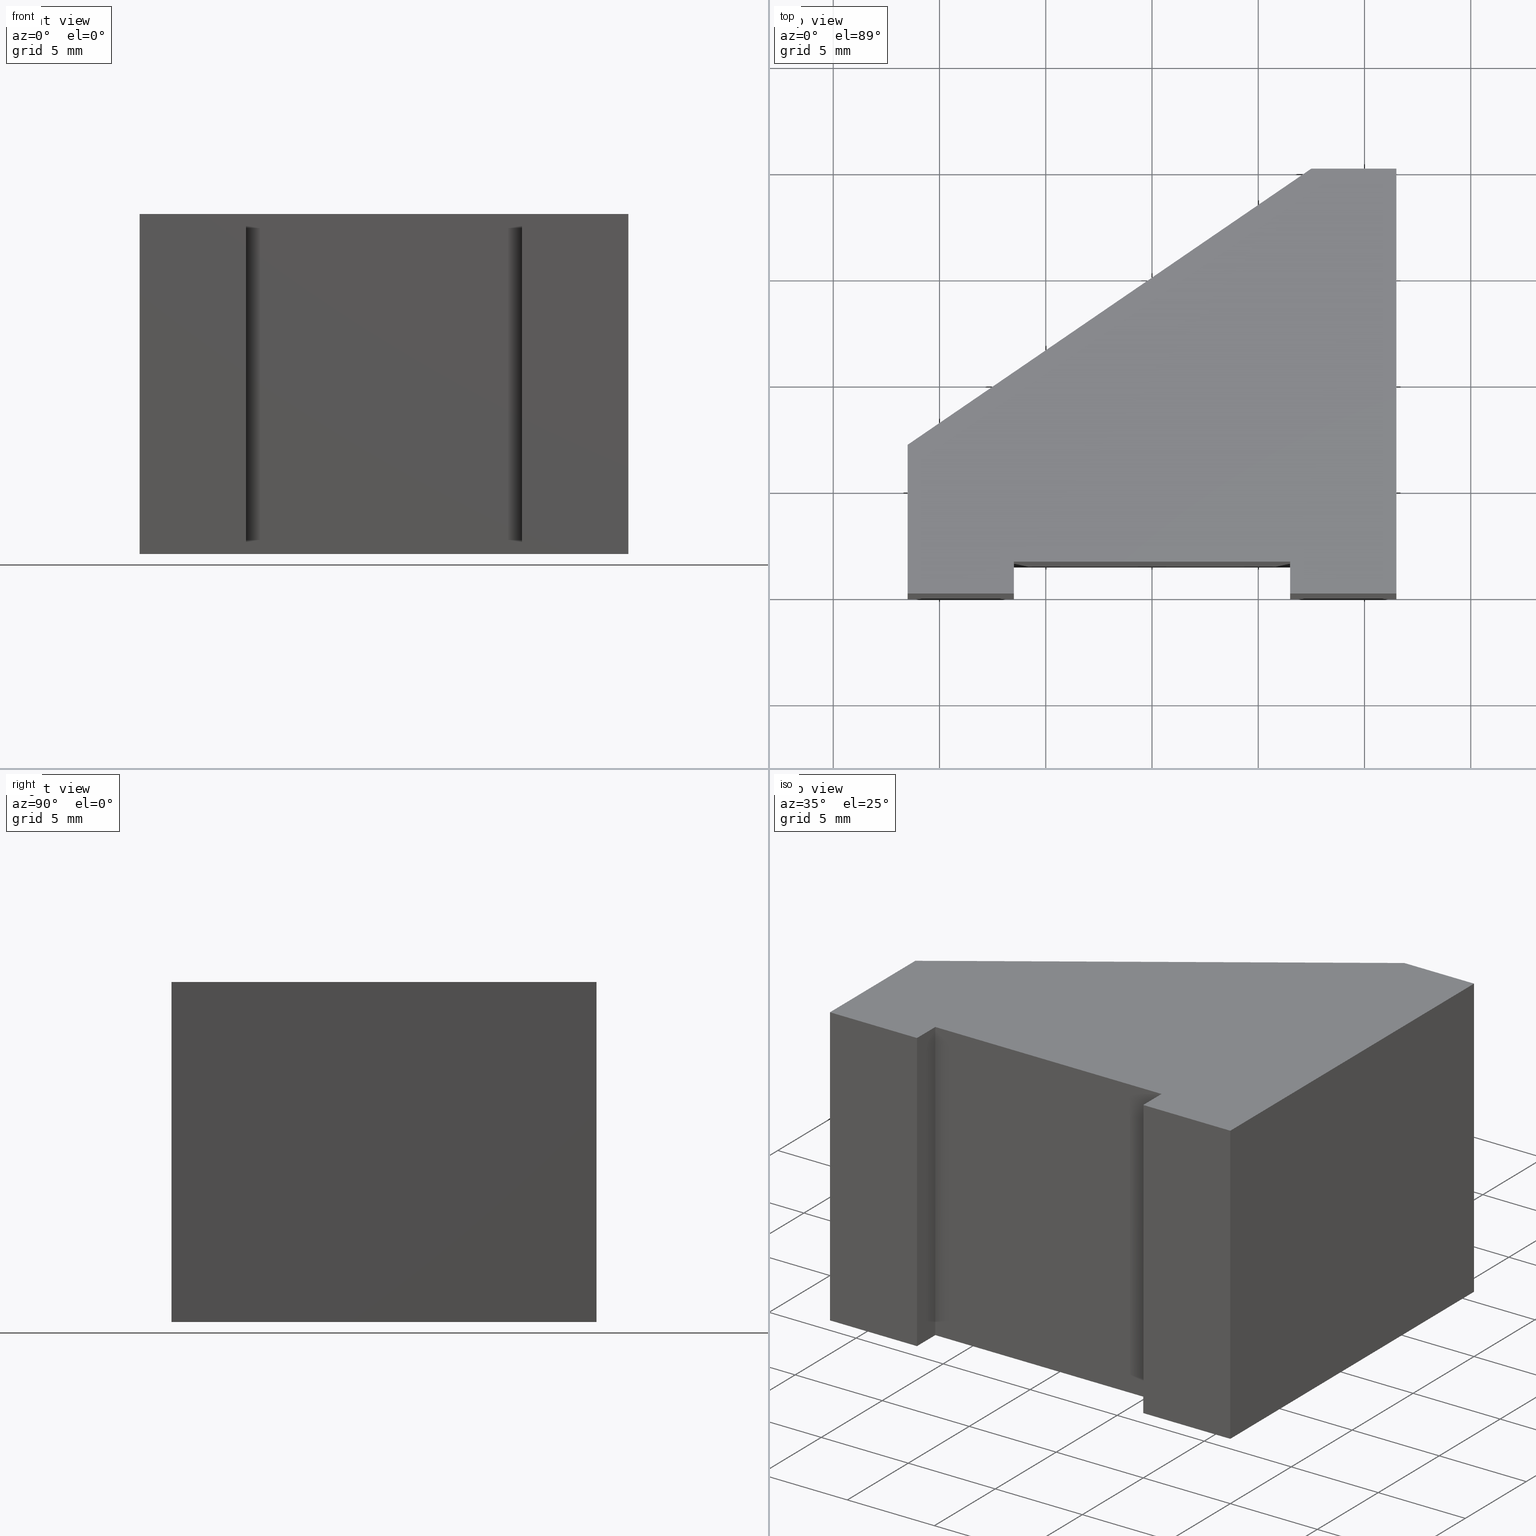
[diagram: canonical four-view strip — front | top / right | iso, engineering-drawing reading convention]
A machine part, canonical four-view strip (front | top / right | iso — engineering-drawing reading convention). The complete STEP part file that produces these views, byte-faithful:
ISO-10303-21;
HEADER;
/* Generated by software containing ST-Developer
 * from STEP Tools, Inc. (www.steptools.com) 
 */

FILE_DESCRIPTION(
/* description */ (''),
/* implementation_level */ '2;1');

FILE_NAME(
/* name */ 'E_3_01_06_06_00_WKZ-0145.stp',
/* time_stamp */ '2025-11-24T11:56:24+01:00',
/* author */ ('d.fischer'),
/* organization */ (''),
/* preprocessor_version */ 'ST-DEVELOPER v20',
/* originating_system */ 'Autodesk Inventor 2025',
/* authorisation */ '');

FILE_SCHEMA (('AUTOMOTIVE_DESIGN { 1 0 10303 214 3 1 1 }'));
ENDSEC;

DATA;
#10=MECHANICAL_DESIGN_GEOMETRIC_PRESENTATION_REPRESENTATION('',(#14,#15,
#16),#359);
#11=SHAPE_REPRESENTATION_RELATIONSHIP('SRR','None',#366,#12);
#12=ADVANCED_BREP_SHAPE_REPRESENTATION('',(#13),#358);
#13=MANIFOLD_SOLID_BREP('Volumenk\X\F6rper1',#214);
#14=STYLED_ITEM('',(#375),#207);
#15=STYLED_ITEM('',(#376),#212);
#16=STYLED_ITEM('',(#375),#13);
#17=FACE_OUTER_BOUND('',#28,.T.);
#18=FACE_OUTER_BOUND('',#29,.T.);
#19=FACE_OUTER_BOUND('',#30,.T.);
#20=FACE_OUTER_BOUND('',#31,.T.);
#21=FACE_OUTER_BOUND('',#32,.T.);
#22=FACE_OUTER_BOUND('',#33,.T.);
#23=FACE_OUTER_BOUND('',#34,.T.);
#24=FACE_OUTER_BOUND('',#35,.T.);
#25=FACE_OUTER_BOUND('',#36,.T.);
#26=FACE_OUTER_BOUND('',#37,.T.);
#27=FACE_OUTER_BOUND('',#38,.T.);
#28=EDGE_LOOP('',(#138,#139,#140,#141,#142,#143,#144,#145,#146));
#29=EDGE_LOOP('',(#147,#148,#149,#150));
#30=EDGE_LOOP('',(#151,#152,#153,#154));
#31=EDGE_LOOP('',(#155,#156,#157,#158));
#32=EDGE_LOOP('',(#159,#160,#161,#162));
#33=EDGE_LOOP('',(#163,#164,#165,#166));
#34=EDGE_LOOP('',(#167,#168,#169,#170));
#35=EDGE_LOOP('',(#171,#172,#173,#174));
#36=EDGE_LOOP('',(#175,#176,#177,#178));
#37=EDGE_LOOP('',(#179,#180,#181,#182));
#38=EDGE_LOOP('',(#183,#184,#185,#186,#187,#188,#189,#190,#191));
#39=LINE('',#303,#66);
#40=LINE('',#305,#67);
#41=LINE('',#307,#68);
#42=LINE('',#309,#69);
#43=LINE('',#311,#70);
#44=LINE('',#313,#71);
#45=LINE('',#315,#72);
#46=LINE('',#317,#73);
#47=LINE('',#318,#74);
#48=LINE('',#322,#75);
#49=LINE('',#323,#76);
#50=LINE('',#324,#77);
#51=LINE('',#327,#78);
#52=LINE('',#328,#79);
#53=LINE('',#331,#80);
#54=LINE('',#332,#81);
#55=LINE('',#335,#82);
#56=LINE('',#336,#83);
#57=LINE('',#339,#84);
#58=LINE('',#340,#85);
#59=LINE('',#343,#86);
#60=LINE('',#344,#87);
#61=LINE('',#347,#88);
#62=LINE('',#348,#89);
#63=LINE('',#351,#90);
#64=LINE('',#352,#91);
#65=LINE('',#354,#92);
#66=VECTOR('',#252,10.);
#67=VECTOR('',#253,10.);
#68=VECTOR('',#254,10.);
#69=VECTOR('',#255,10.);
#70=VECTOR('',#256,10.);
#71=VECTOR('',#257,10.);
#72=VECTOR('',#258,10.);
#73=VECTOR('',#259,10.);
#74=VECTOR('',#260,10.);
#75=VECTOR('',#263,10.);
#76=VECTOR('',#264,10.);
#77=VECTOR('',#265,10.);
#78=VECTOR('',#268,10.);
#79=VECTOR('',#269,10.);
#80=VECTOR('',#272,10.);
#81=VECTOR('',#273,10.);
#82=VECTOR('',#276,10.);
#83=VECTOR('',#277,10.);
#84=VECTOR('',#280,10.);
#85=VECTOR('',#281,10.);
#86=VECTOR('',#284,10.);
#87=VECTOR('',#285,10.);
#88=VECTOR('',#288,10.);
#89=VECTOR('',#289,10.);
#90=VECTOR('',#292,10.);
#91=VECTOR('',#293,10.);
#92=VECTOR('',#296,10.);
#93=VERTEX_POINT('',#301);
#94=VERTEX_POINT('',#302);
#95=VERTEX_POINT('',#304);
#96=VERTEX_POINT('',#306);
#97=VERTEX_POINT('',#308);
#98=VERTEX_POINT('',#310);
#99=VERTEX_POINT('',#312);
#100=VERTEX_POINT('',#314);
#101=VERTEX_POINT('',#316);
#102=VERTEX_POINT('',#320);
#103=VERTEX_POINT('',#321);
#104=VERTEX_POINT('',#326);
#105=VERTEX_POINT('',#330);
#106=VERTEX_POINT('',#334);
#107=VERTEX_POINT('',#338);
#108=VERTEX_POINT('',#342);
#109=VERTEX_POINT('',#346);
#110=VERTEX_POINT('',#350);
#111=EDGE_CURVE('',#93,#94,#39,.T.);
#112=EDGE_CURVE('',#95,#93,#40,.T.);
#113=EDGE_CURVE('',#96,#95,#41,.T.);
#114=EDGE_CURVE('',#97,#96,#42,.T.);
#115=EDGE_CURVE('',#98,#97,#43,.T.);
#116=EDGE_CURVE('',#99,#98,#44,.T.);
#117=EDGE_CURVE('',#100,#99,#45,.T.);
#118=EDGE_CURVE('',#101,#100,#46,.T.);
#119=EDGE_CURVE('',#94,#101,#47,.T.);
#120=EDGE_CURVE('',#102,#103,#48,.T.);
#121=EDGE_CURVE('',#103,#96,#49,.T.);
#122=EDGE_CURVE('',#102,#95,#50,.T.);
#123=EDGE_CURVE('',#103,#104,#51,.T.);
#124=EDGE_CURVE('',#104,#97,#52,.T.);
#125=EDGE_CURVE('',#104,#105,#53,.T.);
#126=EDGE_CURVE('',#105,#98,#54,.T.);
#127=EDGE_CURVE('',#105,#106,#55,.T.);
#128=EDGE_CURVE('',#106,#99,#56,.T.);
#129=EDGE_CURVE('',#106,#107,#57,.T.);
#130=EDGE_CURVE('',#107,#100,#58,.T.);
#131=EDGE_CURVE('',#107,#108,#59,.T.);
#132=EDGE_CURVE('',#108,#101,#60,.T.);
#133=EDGE_CURVE('',#108,#109,#61,.T.);
#134=EDGE_CURVE('',#109,#94,#62,.T.);
#135=EDGE_CURVE('',#109,#110,#63,.T.);
#136=EDGE_CURVE('',#93,#110,#64,.T.);
#137=EDGE_CURVE('',#110,#102,#65,.T.);
#138=ORIENTED_EDGE('',*,*,#111,.F.);
#139=ORIENTED_EDGE('',*,*,#112,.F.);
#140=ORIENTED_EDGE('',*,*,#113,.F.);
#141=ORIENTED_EDGE('',*,*,#114,.F.);
#142=ORIENTED_EDGE('',*,*,#115,.F.);
#143=ORIENTED_EDGE('',*,*,#116,.F.);
#144=ORIENTED_EDGE('',*,*,#117,.F.);
#145=ORIENTED_EDGE('',*,*,#118,.F.);
#146=ORIENTED_EDGE('',*,*,#119,.F.);
#147=ORIENTED_EDGE('',*,*,#120,.T.);
#148=ORIENTED_EDGE('',*,*,#121,.T.);
#149=ORIENTED_EDGE('',*,*,#113,.T.);
#150=ORIENTED_EDGE('',*,*,#122,.F.);
#151=ORIENTED_EDGE('',*,*,#123,.T.);
#152=ORIENTED_EDGE('',*,*,#124,.T.);
#153=ORIENTED_EDGE('',*,*,#114,.T.);
#154=ORIENTED_EDGE('',*,*,#121,.F.);
#155=ORIENTED_EDGE('',*,*,#125,.T.);
#156=ORIENTED_EDGE('',*,*,#126,.T.);
#157=ORIENTED_EDGE('',*,*,#115,.T.);
#158=ORIENTED_EDGE('',*,*,#124,.F.);
#159=ORIENTED_EDGE('',*,*,#127,.T.);
#160=ORIENTED_EDGE('',*,*,#128,.T.);
#161=ORIENTED_EDGE('',*,*,#116,.T.);
#162=ORIENTED_EDGE('',*,*,#126,.F.);
#163=ORIENTED_EDGE('',*,*,#129,.T.);
#164=ORIENTED_EDGE('',*,*,#130,.T.);
#165=ORIENTED_EDGE('',*,*,#117,.T.);
#166=ORIENTED_EDGE('',*,*,#128,.F.);
#167=ORIENTED_EDGE('',*,*,#131,.T.);
#168=ORIENTED_EDGE('',*,*,#132,.T.);
#169=ORIENTED_EDGE('',*,*,#118,.T.);
#170=ORIENTED_EDGE('',*,*,#130,.F.);
#171=ORIENTED_EDGE('',*,*,#133,.T.);
#172=ORIENTED_EDGE('',*,*,#134,.T.);
#173=ORIENTED_EDGE('',*,*,#119,.T.);
#174=ORIENTED_EDGE('',*,*,#132,.F.);
#175=ORIENTED_EDGE('',*,*,#135,.T.);
#176=ORIENTED_EDGE('',*,*,#136,.F.);
#177=ORIENTED_EDGE('',*,*,#111,.T.);
#178=ORIENTED_EDGE('',*,*,#134,.F.);
#179=ORIENTED_EDGE('',*,*,#137,.T.);
#180=ORIENTED_EDGE('',*,*,#122,.T.);
#181=ORIENTED_EDGE('',*,*,#112,.T.);
#182=ORIENTED_EDGE('',*,*,#136,.T.);
#183=ORIENTED_EDGE('',*,*,#120,.F.);
#184=ORIENTED_EDGE('',*,*,#137,.F.);
#185=ORIENTED_EDGE('',*,*,#135,.F.);
#186=ORIENTED_EDGE('',*,*,#133,.F.);
#187=ORIENTED_EDGE('',*,*,#131,.F.);
#188=ORIENTED_EDGE('',*,*,#129,.F.);
#189=ORIENTED_EDGE('',*,*,#127,.F.);
#190=ORIENTED_EDGE('',*,*,#125,.F.);
#191=ORIENTED_EDGE('',*,*,#123,.F.);
#192=PLANE('',#237);
#193=PLANE('',#238);
#194=PLANE('',#239);
#195=PLANE('',#240);
#196=PLANE('',#241);
#197=PLANE('',#242);
#198=PLANE('',#243);
#199=PLANE('',#244);
#200=PLANE('',#245);
#201=PLANE('',#246);
#202=PLANE('',#247);
#203=ADVANCED_FACE('',(#17),#192,.F.);
#204=ADVANCED_FACE('',(#18),#193,.T.);
#205=ADVANCED_FACE('',(#19),#194,.T.);
#206=ADVANCED_FACE('',(#20),#195,.T.);
#207=ADVANCED_FACE('',(#21),#196,.T.);
#208=ADVANCED_FACE('',(#22),#197,.T.);
#209=ADVANCED_FACE('',(#23),#198,.T.);
#210=ADVANCED_FACE('',(#24),#199,.T.);
#211=ADVANCED_FACE('',(#25),#200,.T.);
#212=ADVANCED_FACE('',(#26),#201,.T.);
#213=ADVANCED_FACE('',(#27),#202,.T.);
#214=CLOSED_SHELL('',(#203,#204,#205,#206,#207,#208,#209,#210,#211,#212,
#213));
#215=DERIVED_UNIT_ELEMENT(#218,1.);
#216=DERIVED_UNIT_ELEMENT(#361,-3.);
#217=DIMENSIONAL_EXPONENTS(0.,1.,0.,0.,0.,0.,0.);
#218=(
CONVERSION_BASED_UNIT('gram',#220)
MASS_UNIT()
NAMED_UNIT(#217)
);
#219=(
MASS_UNIT()
NAMED_UNIT(*)
SI_UNIT(.KILO.,.GRAM.)
);
#220=MASS_MEASURE_WITH_UNIT(MASS_MEASURE(0.001),#219);
#221=DERIVED_UNIT((#215,#216));
#222=MEASURE_REPRESENTATION_ITEM('density measure',
POSITIVE_RATIO_MEASURE(8.03),#221);
#223=PROPERTY_DEFINITION_REPRESENTATION(#228,#225);
#224=PROPERTY_DEFINITION_REPRESENTATION(#229,#226);
#225=REPRESENTATION('material name',(#227),#358);
#226=REPRESENTATION('density',(#222),#358);
#227=DESCRIPTIVE_REPRESENTATION_ITEM('1.4301','1.4301');
#228=PROPERTY_DEFINITION('material property','material name',#368);
#229=PROPERTY_DEFINITION('material property','density of part',#368);
#230=DATE_TIME_ROLE('creation_date');
#231=APPLIED_DATE_AND_TIME_ASSIGNMENT(#232,#230,(#368));
#232=DATE_AND_TIME(#233,#234);
#233=CALENDAR_DATE(2011,17,10);
#234=LOCAL_TIME(0,0,0.,#235);
#235=COORDINATED_UNIVERSAL_TIME_OFFSET(0,0,.BEHIND.);
#236=AXIS2_PLACEMENT_3D('',#299,#248,#249);
#237=AXIS2_PLACEMENT_3D('',#300,#250,#251);
#238=AXIS2_PLACEMENT_3D('',#319,#261,#262);
#239=AXIS2_PLACEMENT_3D('',#325,#266,#267);
#240=AXIS2_PLACEMENT_3D('',#329,#270,#271);
#241=AXIS2_PLACEMENT_3D('',#333,#274,#275);
#242=AXIS2_PLACEMENT_3D('',#337,#278,#279);
#243=AXIS2_PLACEMENT_3D('',#341,#282,#283);
#244=AXIS2_PLACEMENT_3D('',#345,#286,#287);
#245=AXIS2_PLACEMENT_3D('',#349,#290,#291);
#246=AXIS2_PLACEMENT_3D('',#353,#294,#295);
#247=AXIS2_PLACEMENT_3D('',#355,#297,#298);
#248=DIRECTION('axis',(0.,0.,1.));
#249=DIRECTION('refdir',(1.,0.,0.));
#250=DIRECTION('center_axis',(0.,0.,1.));
#251=DIRECTION('ref_axis',(1.,0.,0.));
#252=DIRECTION('',(-4.44089209850063E-16,1.,0.));
#253=DIRECTION('',(1.,0.,0.));
#254=DIRECTION('',(-2.22044604925031E-15,-1.,0.));
#255=DIRECTION('',(1.,0.,0.));
#256=DIRECTION('',(-7.40148683083438E-16,1.,0.));
#257=DIRECTION('',(1.,0.,0.));
#258=DIRECTION('',(-3.1720657846433E-16,-1.,0.));
#259=DIRECTION('',(-0.825307261249832,-0.56468391559199,0.));
#260=DIRECTION('',(-1.,-1.11022302462516E-15,0.));
#261=DIRECTION('center_axis',(-1.,2.22044604925031E-15,0.));
#262=DIRECTION('ref_axis',(0.,0.,1.));
#263=DIRECTION('',(2.22044604925031E-15,1.,0.));
#264=DIRECTION('',(0.,0.,-1.));
#265=DIRECTION('',(0.,0.,-1.));
#266=DIRECTION('center_axis',(0.,-1.,0.));
#267=DIRECTION('ref_axis',(0.,0.,-1.));
#268=DIRECTION('',(-1.,0.,0.));
#269=DIRECTION('',(0.,0.,-1.));
#270=DIRECTION('center_axis',(1.,7.40148683083438E-16,0.));
#271=DIRECTION('ref_axis',(0.,0.,-1.));
#272=DIRECTION('',(7.40148683083438E-16,-1.,0.));
#273=DIRECTION('',(0.,0.,-1.));
#274=DIRECTION('center_axis',(0.,-1.,0.));
#275=DIRECTION('ref_axis',(0.,0.,-1.));
#276=DIRECTION('',(-1.,0.,0.));
#277=DIRECTION('',(0.,0.,-1.));
#278=DIRECTION('center_axis',(-1.,3.1720657846433E-16,0.));
#279=DIRECTION('ref_axis',(0.,0.,1.));
#280=DIRECTION('',(3.1720657846433E-16,1.,0.));
#281=DIRECTION('',(0.,0.,-1.));
#282=DIRECTION('center_axis',(-0.56468391559199,0.825307261249832,0.));
#283=DIRECTION('ref_axis',(0.,0.,1.));
#284=DIRECTION('',(0.825307261249832,0.56468391559199,0.));
#285=DIRECTION('',(0.,0.,-1.));
#286=DIRECTION('center_axis',(-1.11022302462516E-15,1.,0.));
#287=DIRECTION('ref_axis',(0.,0.,1.));
#288=DIRECTION('',(1.,1.11022302462516E-15,0.));
#289=DIRECTION('',(0.,0.,-1.));
#290=DIRECTION('center_axis',(1.,4.44089209850063E-16,0.));
#291=DIRECTION('ref_axis',(0.,0.,-1.));
#292=DIRECTION('',(4.44089209850063E-16,-1.,0.));
#293=DIRECTION('',(0.,0.,1.));
#294=DIRECTION('center_axis',(0.,-1.,0.));
#295=DIRECTION('ref_axis',(0.,0.,-1.));
#296=DIRECTION('',(-1.,0.,0.));
#297=DIRECTION('center_axis',(0.,0.,1.));
#298=DIRECTION('ref_axis',(1.,0.,0.));
#299=CARTESIAN_POINT('',(0.,0.,0.));
#300=CARTESIAN_POINT('Origin',(1.76772664463683,7.96087948512347,-8.));
#301=CARTESIAN_POINT('',(11.5,0.,-8.));
#302=CARTESIAN_POINT('',(11.5,20.,-8.));
#303=CARTESIAN_POINT('',(11.5,20.,-8.));
#304=CARTESIAN_POINT('',(6.5,0.,-8.));
#305=CARTESIAN_POINT('',(11.5,0.,-8.));
#306=CARTESIAN_POINT('',(6.5,1.5,-8.));
#307=CARTESIAN_POINT('',(6.5,0.,-8.));
#308=CARTESIAN_POINT('',(-6.5,1.5,-8.));
#309=CARTESIAN_POINT('',(6.5,1.5,-8.));
#310=CARTESIAN_POINT('',(-6.5,0.,-8.));
#311=CARTESIAN_POINT('',(-6.5,1.5,-8.));
#312=CARTESIAN_POINT('',(-11.5,0.,-8.));
#313=CARTESIAN_POINT('',(-6.5,0.,-8.));
#314=CARTESIAN_POINT('',(-11.5,7.,-8.));
#315=CARTESIAN_POINT('',(-11.5,0.,-8.));
#316=CARTESIAN_POINT('',(7.49999999999999,20.,-8.));
#317=CARTESIAN_POINT('',(-11.5,7.,-8.));
#318=CARTESIAN_POINT('',(7.49999999999999,20.,-8.));
#319=CARTESIAN_POINT('Origin',(6.5,0.,0.));
#320=CARTESIAN_POINT('',(6.5,0.,8.));
#321=CARTESIAN_POINT('',(6.5,1.5,8.));
#322=CARTESIAN_POINT('',(6.5,0.,8.));
#323=CARTESIAN_POINT('',(6.5,1.5,0.));
#324=CARTESIAN_POINT('',(6.5,0.,0.));
#325=CARTESIAN_POINT('Origin',(6.5,1.5,0.));
#326=CARTESIAN_POINT('',(-6.5,1.5,8.));
#327=CARTESIAN_POINT('',(6.5,1.5,8.));
#328=CARTESIAN_POINT('',(-6.5,1.5,0.));
#329=CARTESIAN_POINT('Origin',(-6.5,1.5,0.));
#330=CARTESIAN_POINT('',(-6.5,0.,8.));
#331=CARTESIAN_POINT('',(-6.5,1.5,8.));
#332=CARTESIAN_POINT('',(-6.5,0.,0.));
#333=CARTESIAN_POINT('Origin',(-6.5,0.,0.));
#334=CARTESIAN_POINT('',(-11.5,0.,8.));
#335=CARTESIAN_POINT('',(-6.5,0.,8.));
#336=CARTESIAN_POINT('',(-11.5,0.,0.));
#337=CARTESIAN_POINT('Origin',(-11.5,0.,0.));
#338=CARTESIAN_POINT('',(-11.5,7.,8.));
#339=CARTESIAN_POINT('',(-11.5,0.,8.));
#340=CARTESIAN_POINT('',(-11.5,7.,0.));
#341=CARTESIAN_POINT('Origin',(-11.5,7.,0.));
#342=CARTESIAN_POINT('',(7.49999999999999,20.,8.));
#343=CARTESIAN_POINT('',(-11.5,7.,8.));
#344=CARTESIAN_POINT('',(7.49999999999999,20.,0.));
#345=CARTESIAN_POINT('Origin',(7.49999999999999,20.,0.));
#346=CARTESIAN_POINT('',(11.5,20.,8.));
#347=CARTESIAN_POINT('',(7.49999999999999,20.,8.));
#348=CARTESIAN_POINT('',(11.5,20.,0.));
#349=CARTESIAN_POINT('Origin',(11.5,20.,0.));
#350=CARTESIAN_POINT('',(11.5,0.,8.));
#351=CARTESIAN_POINT('',(11.5,20.,8.));
#352=CARTESIAN_POINT('',(11.5,0.,0.));
#353=CARTESIAN_POINT('Origin',(11.5,0.,0.));
#354=CARTESIAN_POINT('',(11.5,0.,8.));
#355=CARTESIAN_POINT('Origin',(1.76772664463683,7.96087948512347,8.));
#356=UNCERTAINTY_MEASURE_WITH_UNIT(LENGTH_MEASURE(0.01),#360,
'DISTANCE_ACCURACY_VALUE',
'Maximum model space distance between geometric entities at asserted c
onnectivities');
#357=UNCERTAINTY_MEASURE_WITH_UNIT(LENGTH_MEASURE(0.01),#360,
'DISTANCE_ACCURACY_VALUE',
'Maximum model space distance between geometric entities at asserted c
onnectivities');
#358=(
GEOMETRIC_REPRESENTATION_CONTEXT(3)
GLOBAL_UNCERTAINTY_ASSIGNED_CONTEXT((#356))
GLOBAL_UNIT_ASSIGNED_CONTEXT((#360,#362,#363))
REPRESENTATION_CONTEXT('','3D')
);
#359=(
GEOMETRIC_REPRESENTATION_CONTEXT(3)
GLOBAL_UNCERTAINTY_ASSIGNED_CONTEXT((#357))
GLOBAL_UNIT_ASSIGNED_CONTEXT((#360,#362,#363))
REPRESENTATION_CONTEXT('','3D')
);
#360=(
LENGTH_UNIT()
NAMED_UNIT(*)
SI_UNIT(.MILLI.,.METRE.)
);
#361=(
LENGTH_UNIT()
NAMED_UNIT(*)
SI_UNIT(.CENTI.,.METRE.)
);
#362=(
NAMED_UNIT(*)
PLANE_ANGLE_UNIT()
SI_UNIT($,.RADIAN.)
);
#363=(
NAMED_UNIT(*)
SI_UNIT($,.STERADIAN.)
SOLID_ANGLE_UNIT()
);
#364=SHAPE_DEFINITION_REPRESENTATION(#365,#366);
#365=PRODUCT_DEFINITION_SHAPE('',$,#368);
#366=SHAPE_REPRESENTATION('',(#236),#358);
#367=PRODUCT_DEFINITION_CONTEXT('part definition',#372,'design');
#368=PRODUCT_DEFINITION('WKZ-0145','E_3_01_06_06_00_WKZ-0145',#369,#367);
#369=PRODUCT_DEFINITION_FORMATION('',$,#374);
#370=PRODUCT_RELATED_PRODUCT_CATEGORY('E_3_01_06_06_00_WKZ-0145',
'E_3_01_06_06_00_WKZ-0145',(#374));
#371=APPLICATION_PROTOCOL_DEFINITION('international standard',
'automotive_design',2009,#372);
#372=APPLICATION_CONTEXT(
'Core Data for Automotive Mechanical Design Process');
#373=PRODUCT_CONTEXT('part definition',#372,'mechanical');
#374=PRODUCT('WKZ-0145','E_3_01_06_06_00_WKZ-0145',$,(#373));
#375=PRESENTATION_STYLE_ASSIGNMENT((#377));
#376=PRESENTATION_STYLE_ASSIGNMENT((#378));
#377=SURFACE_STYLE_USAGE(.BOTH.,#383);
#378=SURFACE_STYLE_USAGE(.BOTH.,#384);
#379=SURFACE_STYLE_RENDERING_WITH_PROPERTIES($,#391,(#381));
#380=SURFACE_STYLE_RENDERING_WITH_PROPERTIES($,#392,(#382));
#381=SURFACE_STYLE_TRANSPARENT(0.);
#382=SURFACE_STYLE_TRANSPARENT(0.);
#383=SURFACE_SIDE_STYLE('',(#385,#379));
#384=SURFACE_SIDE_STYLE('',(#386,#380));
#385=SURFACE_STYLE_FILL_AREA(#387);
#386=SURFACE_STYLE_FILL_AREA(#388);
#387=FILL_AREA_STYLE('',(#389));
#388=FILL_AREA_STYLE('',(#390));
#389=FILL_AREA_STYLE_COLOUR('',#391);
#390=FILL_AREA_STYLE_COLOUR('',#392);
#391=COLOUR_RGB('',0.92156862745098,0.92156862745098,0.92156862745098);
#392=COLOUR_RGB('',0.0392156862745098,0.0392156862745098,0.0392156862745098);
ENDSEC;
END-ISO-10303-21;
